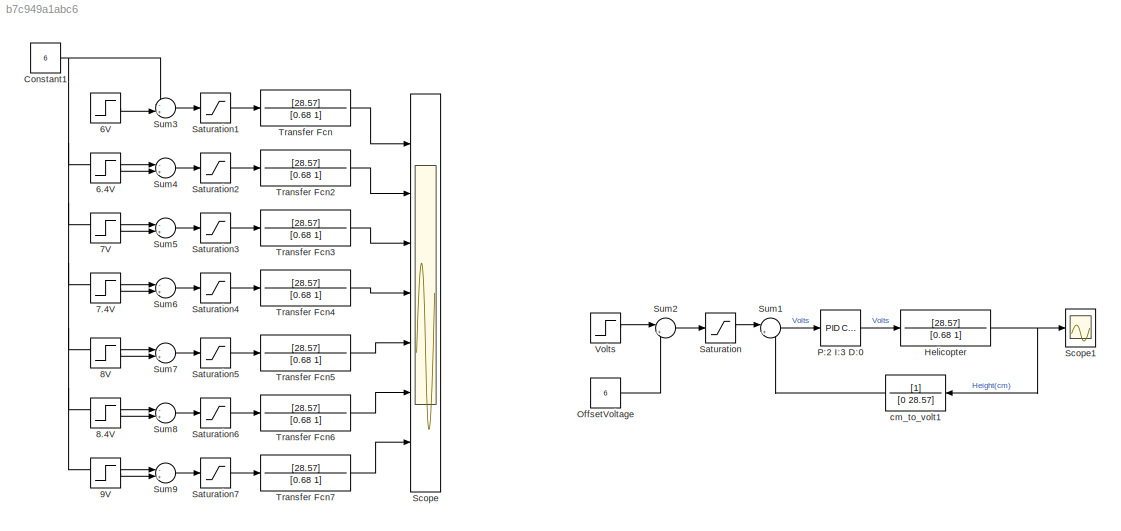
MODEL slx_b7c949a1abc6
KIND model
CONFIG AbsTol = auto
CONFIG EnableMultiTasking = off
CONFIG FixedStep = auto
CONFIG MaxStep = auto
CONFIG MinStep = auto
CONFIG RelTol = 1e-3
CONFIG SampleTimeConstraint = Unconstrained
CONFIG Solver = VariableStepAuto
CONFIG SolverName = VariableStepAuto
CONFIG StartTime = 0.0
CONFIG StopTime = 10
BLOCK [Step] 6.4V
  After = 6.4
  SampleTime = 0
  Time = 0
BLOCK [Step] 6V
  After = 6
  SampleTime = 0
  Time = 0
BLOCK [Step] 7.4V
  After = 7.4
  SampleTime = 0
  Time = 0
BLOCK [Step] 7V
  After = 7
  SampleTime = 0
  Time = 0
BLOCK [Step] 8.4V
  After = 8.4
  SampleTime = 0
  Time = 0
BLOCK [Step] 8V 
  After = 8
  SampleTime = 0
  Time = 0
BLOCK [Step] 9V
  After = 9
  SampleTime = 0
  Time = 0
BLOCK [Constant] Constant1
  Value = 6
BLOCK [TransferFcn] Helicopter
  Denominator = [0.68 1]
  Numerator = [28.57]
BLOCK [Constant] OffsetVoltage 
  Value = 6
BLOCK [Reference] P:2 I:3 D:0  REF=simulink/Continuous/PID Controller
  Ports = [1, 1]
  SourceBlock = simulink/Continuous/PID Controller
  SourceProductBaseCode = SL
  SourceProductName = Simulink
  SourceType = PID 1dof
BLOCK [Saturate] Saturation
  InputPortMap = u0
  LowerLimit = 0
  Ports = [1, 1]
  UpperLimit = 10
BLOCK [Saturate] Saturation1
  InputPortMap = u0
  LowerLimit = 0
  Ports = [1, 1]
  UpperLimit = 10
BLOCK [Saturate] Saturation2
  InputPortMap = u0
  LowerLimit = 0
  Ports = [1, 1]
  UpperLimit = 10
BLOCK [Saturate] Saturation3
  InputPortMap = u0
  LowerLimit = 0
  Ports = [1, 1]
  UpperLimit = 10
BLOCK [Saturate] Saturation4
  InputPortMap = u0
  LowerLimit = 0
  Ports = [1, 1]
  UpperLimit = 10
BLOCK [Saturate] Saturation5
  InputPortMap = u0
  LowerLimit = 0
  Ports = [1, 1]
  UpperLimit = 10
BLOCK [Saturate] Saturation6
  InputPortMap = u0
  LowerLimit = 0
  Ports = [1, 1]
  UpperLimit = 10
BLOCK [Saturate] Saturation7
  InputPortMap = u0
  LowerLimit = 0
  Ports = [1, 1]
  UpperLimit = 10
BLOCK [Scope] Scope
  NumInputPorts = 7
  Ports = [7]
  ScopeSpecificationString = Simulink.scopes.TimeScopeBlockCfg('CurrentConfiguration', extmgr.ConfigurationSet(extmgr.Configuration('Core','General UI',true),extmgr.Configuration('Core','Source UI',true),extmgr.Configuration('Sources','WiredSimulink',true),extmgr.Configuration('Visuals','Time Domain',true,'SerializedDisplays',{struct('MinYLimReal','-10.71375','MaxYLimReal','96.42375','YLabelReal','','MinYLimMag','0.00000','Ma...<+1463ch>
BLOCK [Scope] Scope1
  NumInputPorts = 1
  Ports = [1]
  ScopeSpecificationString = Simulink.scopes.TimeScopeBlockCfg('CurrentConfiguration', extmgr.ConfigurationSet(extmgr.Configuration('Core','General UI',true),extmgr.Configuration('Core','Source UI',true),extmgr.Configuration('Sources','WiredSimulink',true,'DataLoggingVariableName','ScopeData1'),extmgr.Configuration('Visuals','Time Domain',true,'SerializedDisplays',{struct('MinYLimReal','-3.57113','MaxYLimReal','32.14014','YLa...<+1472ch>
BLOCK [Sum] Sum1
  IconShape = round
  InputSameDT = off
  Inputs = |+-
  OutDataTypeStr = Inherit: Inherit via internal rule
  Ports = [2, 1]
  SaturateOnIntegerOverflow = off
BLOCK [Sum] Sum2
  IconShape = round
  InputSameDT = off
  Inputs = |+-
  OutDataTypeStr = Inherit: Inherit via internal rule
  Ports = [2, 1]
  SaturateOnIntegerOverflow = off
BLOCK [Sum] Sum3
  IconShape = round
  InputSameDT = off
  Inputs = -+|
  OutDataTypeStr = Inherit: Inherit via internal rule
  Ports = [2, 1]
  SaturateOnIntegerOverflow = off
BLOCK [Sum] Sum4
  IconShape = round
  InputSameDT = off
  Inputs = -+|
  OutDataTypeStr = Inherit: Inherit via internal rule
  Ports = [2, 1]
  SaturateOnIntegerOverflow = off
BLOCK [Sum] Sum5
  IconShape = round
  InputSameDT = off
  Inputs = -+|
  OutDataTypeStr = Inherit: Inherit via internal rule
  Ports = [2, 1]
  SaturateOnIntegerOverflow = off
BLOCK [Sum] Sum6
  IconShape = round
  InputSameDT = off
  Inputs = -+|
  OutDataTypeStr = Inherit: Inherit via internal rule
  Ports = [2, 1]
  SaturateOnIntegerOverflow = off
BLOCK [Sum] Sum7
  IconShape = round
  InputSameDT = off
  Inputs = -+|
  OutDataTypeStr = Inherit: Inherit via internal rule
  Ports = [2, 1]
  SaturateOnIntegerOverflow = off
BLOCK [Sum] Sum8
  IconShape = round
  InputSameDT = off
  Inputs = -+|
  OutDataTypeStr = Inherit: Inherit via internal rule
  Ports = [2, 1]
  SaturateOnIntegerOverflow = off
BLOCK [Sum] Sum9
  IconShape = round
  InputSameDT = off
  Inputs = -+|
  OutDataTypeStr = Inherit: Inherit via internal rule
  Ports = [2, 1]
  SaturateOnIntegerOverflow = off
BLOCK [TransferFcn] Transfer Fcn
  Denominator = [0.68 1]
  Numerator = [28.57]
BLOCK [TransferFcn] Transfer Fcn2
  Denominator = [0.68 1]
  Numerator = [28.57]
BLOCK [TransferFcn] Transfer Fcn3
  Denominator = [0.68 1]
  Numerator = [28.57]
BLOCK [TransferFcn] Transfer Fcn4
  Denominator = [0.68 1]
  Numerator = [28.57]
BLOCK [TransferFcn] Transfer Fcn5
  Denominator = [0.68 1]
  Numerator = [28.57]
BLOCK [TransferFcn] Transfer Fcn6
  Denominator = [0.68 1]
  Numerator = [28.57]
BLOCK [TransferFcn] Transfer Fcn7
  Denominator = [0.68 1]
  Numerator = [28.57]
BLOCK [Step] Volts
  After = 7
  SampleTime = 0
  Time = 0
BLOCK [TransferFcn] cm_to_volt1
  Denominator = [0 28.57]
LINE 6.4V:1 -> Sum4:2
LINE 6V:1 -> Sum3:2
LINE 7.4V:1 -> Sum6:2
LINE 7V:1 -> Sum5:2
LINE 8.4V:1 -> Sum8:2
LINE 8V :1 -> Sum7:2
LINE 9V:1 -> Sum9:2
NET Constant1:1 -> Sum3:1, Sum4:1, Sum5:1, Sum6:1, Sum7:1, Sum8:1, Sum9:1
NET Helicopter:1 -> Scope1:1, cm_to_volt1:1
LINE OffsetVoltage :1 -> Sum2:2
LINE P:2 I:3 D:0:1 -> Helicopter:1
LINE Saturation1:1 -> Transfer Fcn:1
LINE Saturation2:1 -> Transfer Fcn2:1
LINE Saturation3:1 -> Transfer Fcn3:1
LINE Saturation4:1 -> Transfer Fcn4:1
LINE Saturation5:1 -> Transfer Fcn5:1
LINE Saturation6:1 -> Transfer Fcn6:1
LINE Saturation7:1 -> Transfer Fcn7:1
LINE Saturation:1 -> Sum1:1
LINE Sum1:1 -> P:2 I:3 D:0:1
LINE Sum2:1 -> Saturation:1
LINE Sum3:1 -> Saturation1:1
LINE Sum4:1 -> Saturation2:1
LINE Sum5:1 -> Saturation3:1
LINE Sum6:1 -> Saturation4:1
LINE Sum7:1 -> Saturation5:1
LINE Sum8:1 -> Saturation6:1
LINE Sum9:1 -> Saturation7:1
LINE Transfer Fcn2:1 -> Scope:2
LINE Transfer Fcn3:1 -> Scope:3
LINE Transfer Fcn4:1 -> Scope:4
LINE Transfer Fcn5:1 -> Scope:5
LINE Transfer Fcn6:1 -> Scope:6
LINE Transfer Fcn7:1 -> Scope:7
LINE Transfer Fcn:1 -> Scope:1
LINE Volts:1 -> Sum2:1
LINE cm_to_volt1:1 -> Sum1:2
note: NET lines group one-source signal fan-out (src -> all destinations, sorted); 1:1 wires keep LINE
